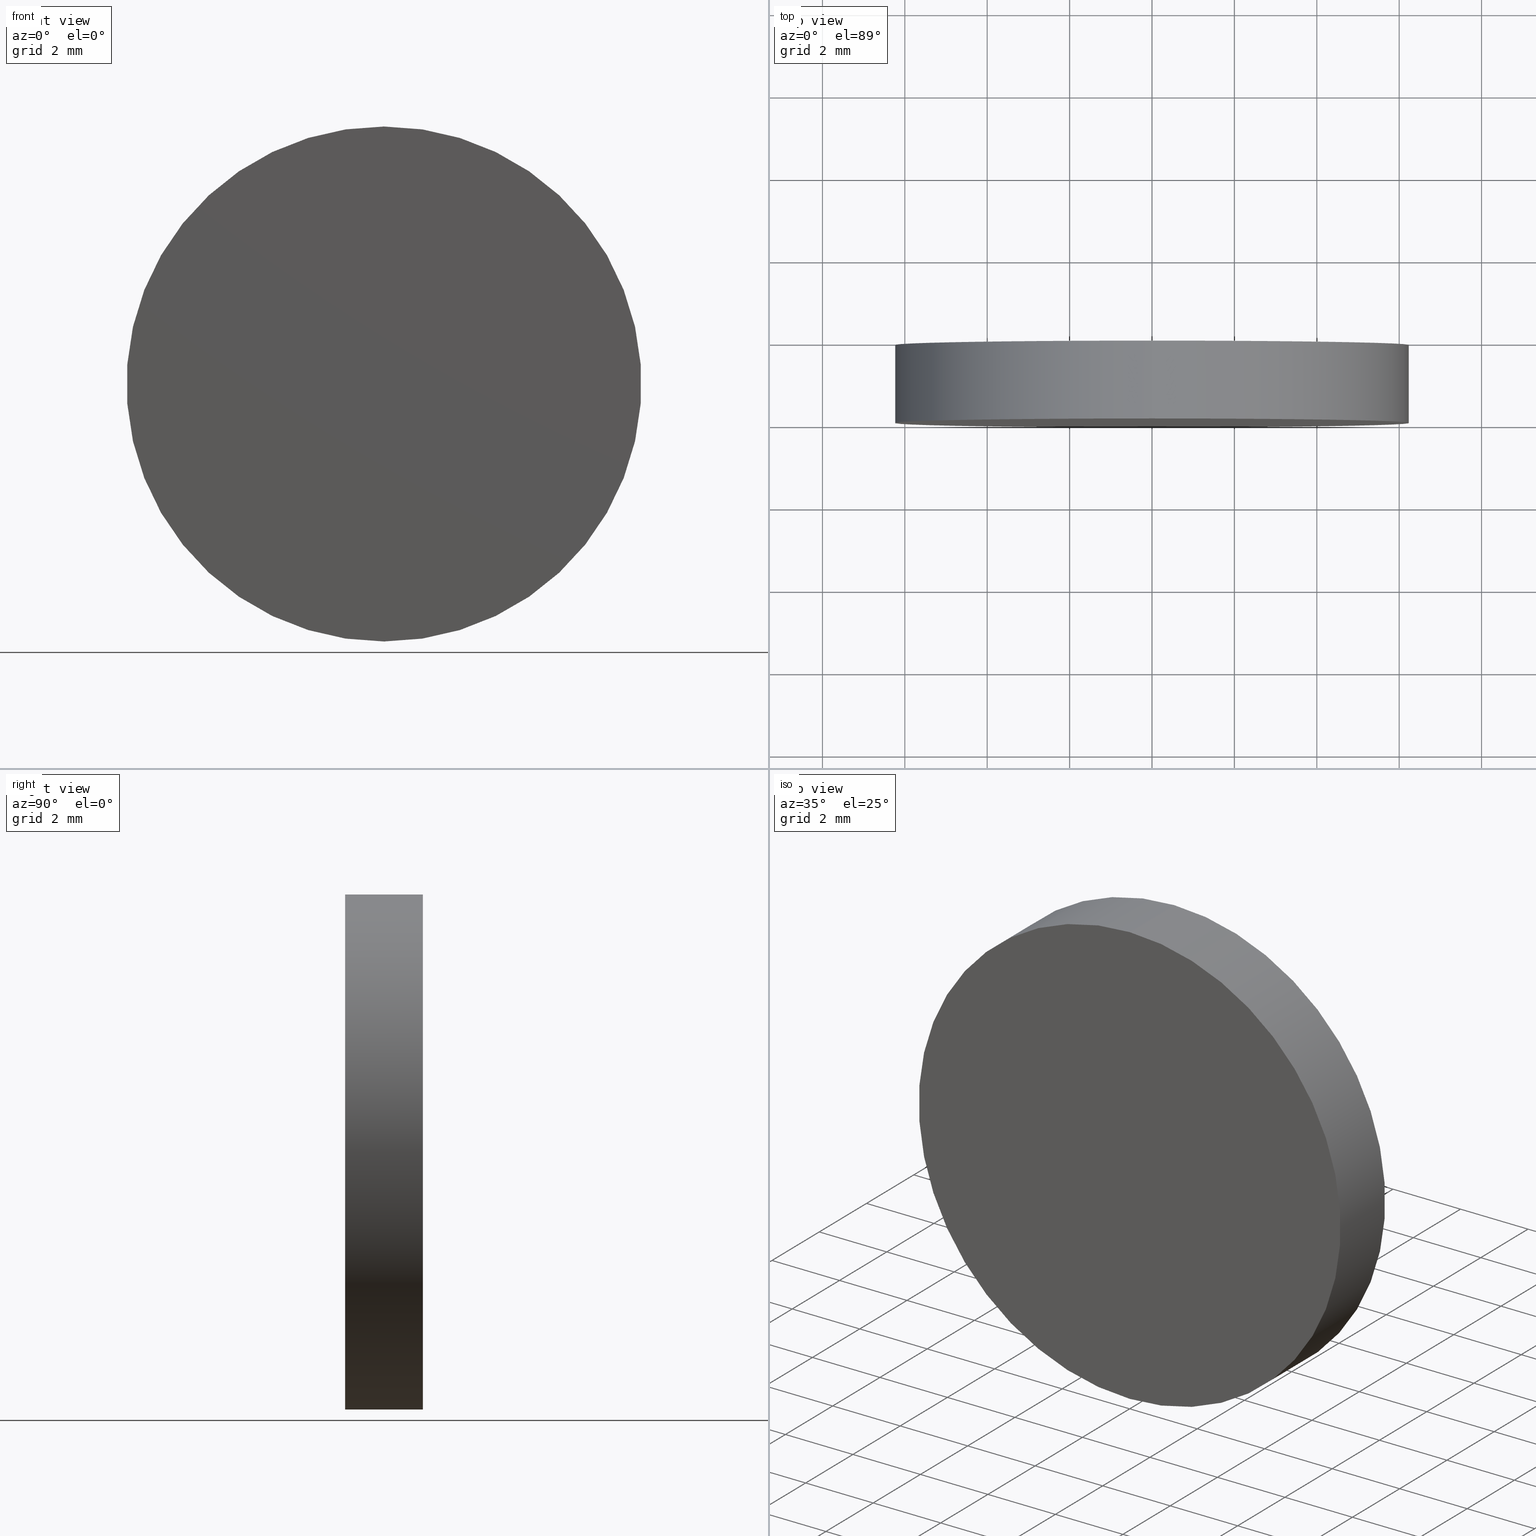
[diagram: canonical four-view strip — front | top / right | iso, engineering-drawing reading convention]
A machine part, canonical four-view strip (front | top / right | iso — engineering-drawing reading convention). The complete STEP part file that produces these views, byte-faithful:
ISO-10303-21;
HEADER;
FILE_DESCRIPTION (( 'STEP AP214' ),
    '1' );
FILE_NAME ('248578.STEP',
    '2019-08-02T08:47:15',
    ( 'user' ),
    ( '΢���й�' ),
    'SwSTEP 2.0',
    'SolidWorks 2016',
    '' );
FILE_SCHEMA (( 'AUTOMOTIVE_DESIGN' ));
ENDSEC;

DATA;
#1 = ADVANCED_FACE ( 'NONE', ( #85 ), #5, .T. ) ;
#2 = ADVANCED_FACE ( 'NONE', ( #7 ), #13, .T. ) ;
#3 = ORIENTED_EDGE ( 'NONE', *, *, #94, .F. ) ;
#4 = SURFACE_STYLE_FILL_AREA ( #107 ) ;
#5 = CYLINDRICAL_SURFACE ( 'NONE', #57, 6.250000000000000000 ) ;
#6 = PRODUCT_DEFINITION ( 'δ֪', '', #81, #47 ) ;
#7 = FACE_OUTER_BOUND ( 'NONE', #129, .T. ) ;
#8 = DIRECTION ( 'NONE',  ( 0.0000000000000000000, 0.0000000000000000000, 1.000000000000000000 ) ) ;
#9 = CARTESIAN_POINT ( 'NONE',  ( 0.0000000000000000000, 0.0000000000000000000, 0.0000000000000000000 ) ) ;
#10 = AXIS2_PLACEMENT_3D ( 'NONE', #11, #35, #33 ) ;
#11 = CARTESIAN_POINT ( 'NONE',  ( 0.0000000000000000000, 1.889999999999999900, 0.0000000000000000000 ) ) ;
#12 = ADVANCED_FACE ( 'NONE', ( #106 ), #125, .T. ) ;
#13 = CYLINDRICAL_SURFACE ( 'NONE', #48, 6.250000000000000000 ) ;
#14 = APPLICATION_PROTOCOL_DEFINITION ( 'draft international standard', 'automotive_design', 1998, #16 ) ;
#15 = ADVANCED_BREP_SHAPE_REPRESENTATION ( '248578', ( #101, #128 ), #50 ) ;
#16 = APPLICATION_CONTEXT ( 'automotive_design' ) ;
#17 = PRODUCT_CONTEXT ( 'NONE', #58, 'mechanical' ) ;
#18 = DIRECTION ( 'NONE',  ( 0.0000000000000000000, -0.0000000000000000000, 1.000000000000000000 ) ) ;
#19 = DIRECTION ( 'NONE',  ( 1.000000000000000000, 0.0000000000000000000, 0.0000000000000000000 ) ) ;
#20 = DIRECTION ( 'NONE',  ( 0.0000000000000000000, 0.0000000000000000000, 1.000000000000000000 ) ) ;
#21 = DIRECTION ( 'NONE',  ( 0.0000000000000000000, 0.0000000000000000000, 1.000000000000000000 ) ) ;
#22 = EDGE_LOOP ( 'NONE', ( #122, #111 ) ) ;
#23 = DIRECTION ( 'NONE',  ( 0.0000000000000000000, 0.0000000000000000000, -1.000000000000000000 ) ) ;
#24 =( NAMED_UNIT ( * ) SI_UNIT ( $, .STERADIAN. ) SOLID_ANGLE_UNIT ( ) );
#25 =( NAMED_UNIT ( * ) PLANE_ANGLE_UNIT ( ) SI_UNIT ( $, .RADIAN. ) );
#26 = AXIS2_PLACEMENT_3D ( 'NONE', #74, #83, #20 ) ;
#27 = LINE ( 'NONE', #51, #30 ) ;
#28 = LINE ( 'NONE', #108, #39 ) ;
#29 = CARTESIAN_POINT ( 'NONE',  ( 0.0000000000000000000, 1.889999999999999900, 0.0000000000000000000 ) ) ;
#30 = VECTOR ( 'NONE', #32, 1000.000000000000000 ) ;
#31 =( LENGTH_UNIT ( ) NAMED_UNIT ( * ) SI_UNIT ( .MILLI., .METRE. ) );
#32 = DIRECTION ( 'NONE',  ( -0.0000000000000000000, -1.000000000000000000, -0.0000000000000000000 ) ) ;
#33 = DIRECTION ( 'NONE',  ( 0.0000000000000000000, 0.0000000000000000000, 1.000000000000000000 ) ) ;
#34 = SURFACE_STYLE_USAGE ( .BOTH. , #44 ) ;
#35 = DIRECTION ( 'NONE',  ( 0.0000000000000000000, 1.000000000000000000, 0.0000000000000000000 ) ) ;
#36 = FACE_OUTER_BOUND ( 'NONE', #22, .T. ) ;
#37 = ORIENTED_EDGE ( 'NONE', *, *, #94, .T. ) ;
#38 = SURFACE_STYLE_FILL_AREA ( #46 ) ;
#39 = VECTOR ( 'NONE', #80, 1000.000000000000000 ) ;
#40 = PRESENTATION_LAYER_ASSIGNMENT (  '', '', ( #88 ) ) ;
#41 = ORIENTED_EDGE ( 'NONE', *, *, #105, .T. ) ;
#42 = CARTESIAN_POINT ( 'NONE',  ( 0.0000000000000000000, 1.889999999999999900, 0.0000000000000000000 ) ) ;
#43 = VERTEX_POINT ( 'NONE', #135 ) ;
#44 = SURFACE_SIDE_STYLE ('',( #38 ) ) ;
#45 = SHAPE_DEFINITION_REPRESENTATION ( #127, #15 ) ;
#46 = FILL_AREA_STYLE ('',( #104 ) ) ;
#47 = PRODUCT_DEFINITION_CONTEXT ( 'detailed design', #16, 'design' ) ;
#48 = AXIS2_PLACEMENT_3D ( 'NONE', #42, #66, #23 ) ;
#49 = VERTEX_POINT ( 'NONE', #131 ) ;
#50 =( GEOMETRIC_REPRESENTATION_CONTEXT ( 3 ) GLOBAL_UNCERTAINTY_ASSIGNED_CONTEXT ( ( #136 ) ) GLOBAL_UNIT_ASSIGNED_CONTEXT ( ( #71, #70, #69 ) ) REPRESENTATION_CONTEXT ( 'NONE', 'WORKASPACE' ) );
#51 = CARTESIAN_POINT ( 'NONE',  ( 7.654042494670957600E-016, 1.889999999999999900, 6.250000000000000000 ) ) ;
#52 =( GEOMETRIC_REPRESENTATION_CONTEXT ( 3 ) GLOBAL_UNCERTAINTY_ASSIGNED_CONTEXT ( ( #77 ) ) GLOBAL_UNIT_ASSIGNED_CONTEXT ( ( #31, #25, #24 ) ) REPRESENTATION_CONTEXT ( 'NONE', 'WORKASPACE' ) );
#53 = PRODUCT_RELATED_PRODUCT_CATEGORY ( 'part', '', ( #90 ) ) ;
#54 = VERTEX_POINT ( 'NONE', #137 ) ;
#55 = CIRCLE ( 'NONE', #98, 6.250000000000000000 ) ;
#56 = EDGE_LOOP ( 'NONE', ( #75, #37, #65, #102 ) ) ;
#57 = AXIS2_PLACEMENT_3D ( 'NONE', #89, #130, #103 ) ;
#58 = APPLICATION_CONTEXT ( 'automotive_design' ) ;
#59 = AXIS2_PLACEMENT_3D ( 'NONE', #138, #123, #18 ) ;
#60 = PRESENTATION_STYLE_ASSIGNMENT (( #96 ) ) ;
#61 = STYLED_ITEM ( 'NONE', ( #113 ), #15 ) ;
#62 = APPLICATION_PROTOCOL_DEFINITION ( 'draft international standard', 'automotive_design', 1998, #58 ) ;
#63 = AXIS2_PLACEMENT_3D ( 'NONE', #29, #68, #121 ) ;
#64 =( GEOMETRIC_REPRESENTATION_CONTEXT ( 3 ) GLOBAL_UNCERTAINTY_ASSIGNED_CONTEXT ( ( #84 ) ) GLOBAL_UNIT_ASSIGNED_CONTEXT ( ( #95, #93, #92 ) ) REPRESENTATION_CONTEXT ( 'NONE', 'WORKASPACE' ) );
#65 = ORIENTED_EDGE ( 'NONE', *, *, #76, .T. ) ;
#66 = DIRECTION ( 'NONE',  ( -0.0000000000000000000, -1.000000000000000000, -0.0000000000000000000 ) ) ;
#67 = EDGE_CURVE ( 'NONE', #43, #49, #55, .T. ) ;
#68 = DIRECTION ( 'NONE',  ( 0.0000000000000000000, 1.000000000000000000, 0.0000000000000000000 ) ) ;
#69 =( NAMED_UNIT ( * ) SI_UNIT ( $, .STERADIAN. ) SOLID_ANGLE_UNIT ( ) );
#70 =( NAMED_UNIT ( * ) PLANE_ANGLE_UNIT ( ) SI_UNIT ( $, .RADIAN. ) );
#71 =( LENGTH_UNIT ( ) NAMED_UNIT ( * ) SI_UNIT ( .MILLI., .METRE. ) );
#72 = ADVANCED_FACE ( 'NONE', ( #36 ), #133, .F. ) ;
#73 = MECHANICAL_DESIGN_GEOMETRIC_PRESENTATION_REPRESENTATION (  '', ( #88 ), #64 ) ;
#74 = CARTESIAN_POINT ( 'NONE',  ( 0.0000000000000000000, 0.0000000000000000000, 0.0000000000000000000 ) ) ;
#75 = ORIENTED_EDGE ( 'NONE', *, *, #67, .F. ) ;
#76 = EDGE_CURVE ( 'NONE', #54, #100, #112, .T. ) ;
#77 = UNCERTAINTY_MEASURE_WITH_UNIT (LENGTH_MEASURE( 1.000000000000000100E-005 ), #31, 'distance_accuracy_value', 'NONE');
#78 = ORIENTED_EDGE ( 'NONE', *, *, #87, .T. ) ;
#79 = CIRCLE ( 'NONE', #10, 6.250000000000000000 ) ;
#80 = DIRECTION ( 'NONE',  ( -0.0000000000000000000, -1.000000000000000000, -0.0000000000000000000 ) ) ;
#81 = PRODUCT_DEFINITION_FORMATION_WITH_SPECIFIED_SOURCE ( '�κ�', '', #90, .NOT_KNOWN. ) ;
#82 = ORIENTED_EDGE ( 'NONE', *, *, #109, .T. ) ;
#83 = DIRECTION ( 'NONE',  ( 0.0000000000000000000, 1.000000000000000000, 0.0000000000000000000 ) ) ;
#84 = UNCERTAINTY_MEASURE_WITH_UNIT (LENGTH_MEASURE( 1.000000000000000100E-005 ), #95, 'distance_accuracy_value', 'NONE');
#85 = FACE_OUTER_BOUND ( 'NONE', #56, .T. ) ;
#86 = ORIENTED_EDGE ( 'NONE', *, *, #105, .F. ) ;
#87 = EDGE_CURVE ( 'NONE', #100, #54, #110, .T. ) ;
#88 = STYLED_ITEM ( 'NONE', ( #60 ), #101 ) ;
#89 = CARTESIAN_POINT ( 'NONE',  ( 0.0000000000000000000, 1.889999999999999900, 0.0000000000000000000 ) ) ;
#90 = PRODUCT ( '248578', '248578', '', ( #17 ) ) ;
#91 = EDGE_LOOP ( 'NONE', ( #41, #126 ) ) ;
#92 =( NAMED_UNIT ( * ) SI_UNIT ( $, .STERADIAN. ) SOLID_ANGLE_UNIT ( ) );
#93 =( NAMED_UNIT ( * ) PLANE_ANGLE_UNIT ( ) SI_UNIT ( $, .RADIAN. ) );
#94 = EDGE_CURVE ( 'NONE', #43, #54, #27, .T. ) ;
#95 =( LENGTH_UNIT ( ) NAMED_UNIT ( * ) SI_UNIT ( .MILLI., .METRE. ) );
#96 = SURFACE_STYLE_USAGE ( .BOTH. , #119 ) ;
#97 = DIRECTION ( 'NONE',  ( 0.0000000000000000000, 1.000000000000000000, 0.0000000000000000000 ) ) ;
#98 = AXIS2_PLACEMENT_3D ( 'NONE', #134, #97, #8 ) ;
#99 = AXIS2_PLACEMENT_3D ( 'NONE', #117, #118, #116 ) ;
#100 = VERTEX_POINT ( 'NONE', #124 ) ;
#101 = MANIFOLD_SOLID_BREP ( '͹̨-����1', #132 ) ;
#102 = ORIENTED_EDGE ( 'NONE', *, *, #109, .F. ) ;
#103 = DIRECTION ( 'NONE',  ( 0.0000000000000000000, 0.0000000000000000000, -1.000000000000000000 ) ) ;
#104 = FILL_AREA_STYLE_COLOUR ( '', #139 ) ;
#105 = EDGE_CURVE ( 'NONE', #49, #43, #79, .T. ) ;
#106 = FACE_OUTER_BOUND ( 'NONE', #91, .T. ) ;
#107 = FILL_AREA_STYLE ('',( #115 ) ) ;
#108 = CARTESIAN_POINT ( 'NONE',  ( 0.0000000000000000000, 1.889999999999999900, -6.250000000000000000 ) ) ;
#109 = EDGE_CURVE ( 'NONE', #49, #100, #28, .T. ) ;
#110 = CIRCLE ( 'NONE', #99, 6.250000000000000000 ) ;
#111 = ORIENTED_EDGE ( 'NONE', *, *, #76, .F. ) ;
#112 = CIRCLE ( 'NONE', #26, 6.250000000000000000 ) ;
#113 = PRESENTATION_STYLE_ASSIGNMENT (( #34 ) ) ;
#114 = PRESENTATION_LAYER_ASSIGNMENT (  '', '', ( #61 ) ) ;
#115 = FILL_AREA_STYLE_COLOUR ( '', #140 ) ;
#116 = DIRECTION ( 'NONE',  ( 0.0000000000000000000, 0.0000000000000000000, 1.000000000000000000 ) ) ;
#117 = CARTESIAN_POINT ( 'NONE',  ( 0.0000000000000000000, 0.0000000000000000000, 0.0000000000000000000 ) ) ;
#118 = DIRECTION ( 'NONE',  ( 0.0000000000000000000, 1.000000000000000000, 0.0000000000000000000 ) ) ;
#119 = SURFACE_SIDE_STYLE ('',( #4 ) ) ;
#120 = MECHANICAL_DESIGN_GEOMETRIC_PRESENTATION_REPRESENTATION (  '', ( #61 ), #52 ) ;
#121 = DIRECTION ( 'NONE',  ( 0.0000000000000000000, -0.0000000000000000000, 1.000000000000000000 ) ) ;
#122 = ORIENTED_EDGE ( 'NONE', *, *, #87, .F. ) ;
#123 = DIRECTION ( 'NONE',  ( 0.0000000000000000000, 1.000000000000000000, 0.0000000000000000000 ) ) ;
#124 = CARTESIAN_POINT ( 'NONE',  ( 0.0000000000000000000, 0.0000000000000000000, -6.250000000000000000 ) ) ;
#125 = PLANE ( 'NONE',  #63 ) ;
#126 = ORIENTED_EDGE ( 'NONE', *, *, #67, .T. ) ;
#127 = PRODUCT_DEFINITION_SHAPE ( 'NONE', 'NONE',  #6 ) ;
#128 = AXIS2_PLACEMENT_3D ( 'NONE', #9, #21, #19 ) ;
#129 = EDGE_LOOP ( 'NONE', ( #3, #86, #82, #78 ) ) ;
#130 = DIRECTION ( 'NONE',  ( -0.0000000000000000000, -1.000000000000000000, -0.0000000000000000000 ) ) ;
#131 = CARTESIAN_POINT ( 'NONE',  ( 0.0000000000000000000, 1.889999999999999900, -6.250000000000000000 ) ) ;
#132 = CLOSED_SHELL ( 'NONE', ( #1, #2, #12, #72 ) ) ;
#133 = PLANE ( 'NONE',  #59 ) ;
#134 = CARTESIAN_POINT ( 'NONE',  ( 0.0000000000000000000, 1.889999999999999900, 0.0000000000000000000 ) ) ;
#135 = CARTESIAN_POINT ( 'NONE',  ( 7.654042494670957600E-016, 1.889999999999999900, 6.250000000000000000 ) ) ;
#136 = UNCERTAINTY_MEASURE_WITH_UNIT (LENGTH_MEASURE( 1.000000000000000100E-005 ), #71, 'distance_accuracy_value', 'NONE');
#137 = CARTESIAN_POINT ( 'NONE',  ( 7.654042494670957600E-016, 0.0000000000000000000, 6.250000000000000000 ) ) ;
#138 = CARTESIAN_POINT ( 'NONE',  ( 0.0000000000000000000, 0.0000000000000000000, 0.0000000000000000000 ) ) ;
#139 = COLOUR_RGB ( '',1.000000000000000000, 1.000000000000000000, 1.000000000000000000 ) ;
#140 = COLOUR_RGB ( '',1.000000000000000000, 1.000000000000000000, 1.000000000000000000 ) ;
ENDSEC;
END-ISO-10303-21;
